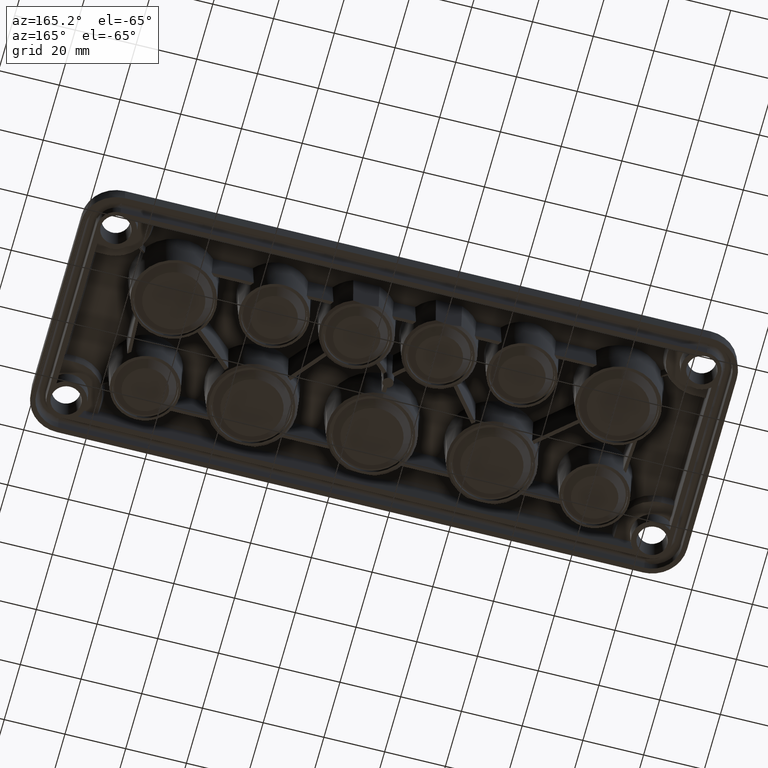
[diagram: clean part render]
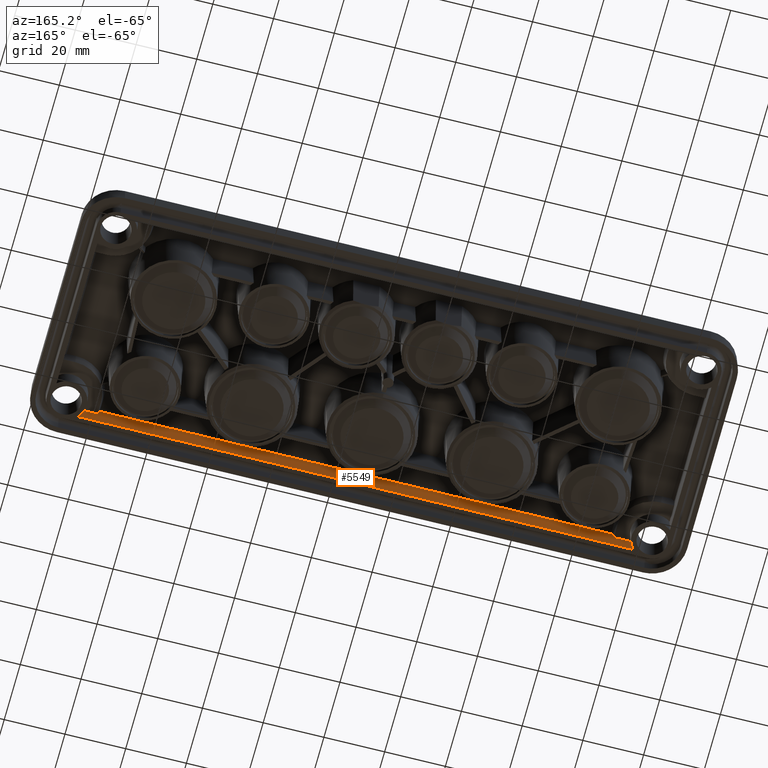
[diagram: same view with one face highlighted and labeled with its STEP entity id]
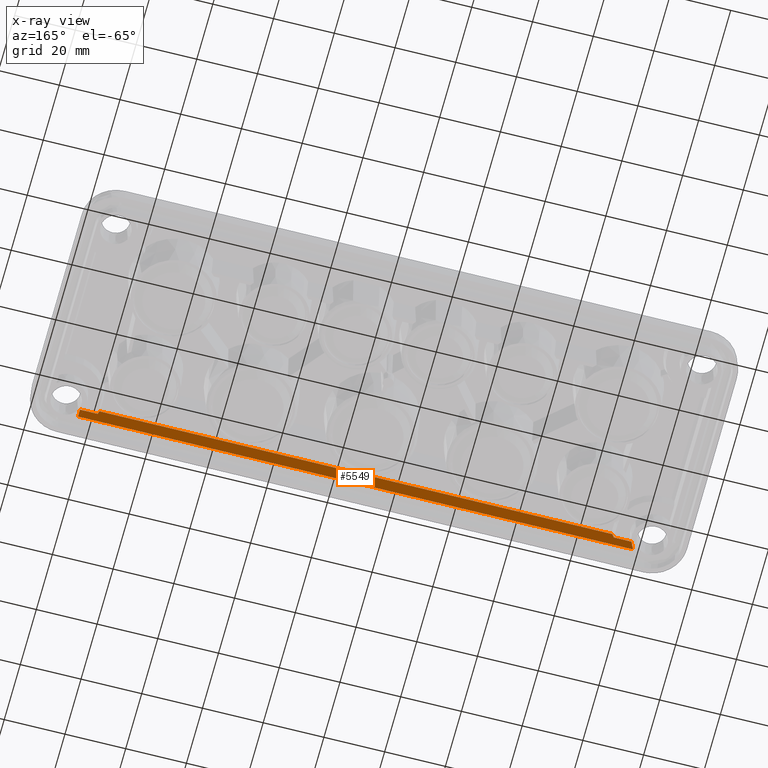
[diagram: x-ray of the same camera — body ghosted, the highlighted face saturated]
A machine part, auxiliary view. The second image highlights one B-rep face of the part: STEP entity #5549.
The next image is the same camera in x-ray: the body ghosted, the highlighted face saturated — about 0% of this face is hidden behind the body in this view.
In plain terms, the highlighted planar face has unit normal (-0, -0.9986, 0.0523).
Its self-contained STEP definition (entity closure, byte-faithful):
#269 = EDGE_CURVE ( 'NONE', #3693, #2060, #6876, .T. ) ;
#406 = CARTESIAN_POINT ( 'NONE',  ( 127.1969304835574000, 103.9051156834459800, 7.001370465245423200 ) ) ;
#504 = VECTOR ( 'NONE', #10700, 1000.000000000000000 ) ;
#1095 = VERTEX_POINT ( 'NONE', #17498 ) ;
#1238 = DIRECTION ( 'NONE',  ( -9.826648491202943600E-018, -0.9986295347545738300, 0.05233595624294659600 ) ) ;
#1552 = CARTESIAN_POINT ( 'NONE',  ( 120.2587037222531900, 103.5381894054234000, -3.072236916488853000E-014 ) ) ;
#1754 = ORIENTED_EDGE ( 'NONE', *, *, #8986, .T. ) ;
#1765 = LINE ( 'NONE', #2035, #10583 ) ;
#1857 = ORIENTED_EDGE ( 'NONE', *, *, #2562, .T. ) ;
#2035 = CARTESIAN_POINT ( 'NONE',  ( 211.6606648836394400, 103.5381894054246000, 8.881784197001252300E-016 ) ) ;
#2060 = VERTEX_POINT ( 'NONE', #406 ) ;
#2090 = DIRECTION ( 'NONE',  ( -1.000000000000000000, -0.0000000000000000000, 0.0000000000000000000 ) ) ;
#2562 = EDGE_CURVE ( 'NONE', #10891, #7012, #6418, .T. ) ;
#2574 = VERTEX_POINT ( 'NONE', #12463 ) ;
#2584 = CARTESIAN_POINT ( 'NONE',  ( 127.1969304835574000, 103.9051156834460000, 7.001370465245427600 ) ) ;
#2819 = ORIENTED_EDGE ( 'NONE', *, *, #269, .F. ) ;
#2858 = CARTESIAN_POINT ( 'NONE',  ( 120.8097426011956900, 103.8002283018393800, 4.999999999998188100 ) ) ;
#3215 = VECTOR ( 'NONE', #12124, 1000.000000000000000 ) ;
#3600 = LINE ( 'NONE', #11139, #15741 ) ;
#3693 = VERTEX_POINT ( 'NONE', #12796 ) ;
#3788 = VECTOR ( 'NONE', #9270, 1000.000000000000000 ) ;
#5333 = ORIENTED_EDGE ( 'NONE', *, *, #12053, .F. ) ;
#5514 = ORIENTED_EDGE ( 'NONE', *, *, #11259, .F. ) ;
#5549 = ADVANCED_FACE ( 'NONE', ( #14319 ), #9343, .F. ) ;
#5614 = DIRECTION ( 'NONE',  ( 0.0000000000000000000, -0.05233595624294658900, -0.9986295347545737200 ) ) ;
#5979 = CARTESIAN_POINT ( 'NONE',  ( 120.6260664470557200, 103.7084070776983000, 3.247946671320893300 ) ) ;
#6206 = B_SPLINE_CURVE_WITH_KNOTS ( 'NONE', 3,
 ( #13994, #7174, #11384, #10308 ),
 .UNSPECIFIED., .F., .F.,
 ( 4, 4 ),
 ( 0.0000000000000000000, 1.000000000000000000 ),
 .UNSPECIFIED. ) ;
#6418 = B_SPLINE_CURVE_WITH_KNOTS ( 'NONE', 3,
 ( #16674, #11094, #5979, #2858 ),
 .UNSPECIFIED., .F., .F.,
 ( 4, 4 ),
 ( 0.0000000000000000000, 1.000000000000000000 ),
 .UNSPECIFIED. ) ;
#6572 = CARTESIAN_POINT ( 'NONE',  ( 296.6606648836394700, 103.8002283018398200, 5.000000000000000900 ) ) ;
#6876 = LINE ( 'NONE', #9479, #3215 ) ;
#6946 = CARTESIAN_POINT ( 'NONE',  ( 120.8097426011956900, 103.8002283018393800, 4.999999999998188100 ) ) ;
#7012 = VERTEX_POINT ( 'NONE', #6946 ) ;
#7174 = CARTESIAN_POINT ( 'NONE',  ( 302.8787083754639300, 103.6211630123450600, 1.583280302101334900 ) ) ;
#7442 = EDGE_CURVE ( 'NONE', #2574, #16645, #10186, .T. ) ;
#7741 = LINE ( 'NONE', #2584, #8370 ) ;
#8143 = VERTEX_POINT ( 'NONE', #16122 ) ;
#8370 = VECTOR ( 'NONE', #9488, 1000.000000000000100 ) ;
#8986 = EDGE_CURVE ( 'NONE', #8143, #10891, #1765, .T. ) ;
#9270 = DIRECTION ( 'NONE',  ( -1.000000000000000000, 9.813181410966728600E-018, -5.142870454504143400E-019 ) ) ;
#9343 = PLANE ( 'NONE',  #15882 ) ;
#9479 = CARTESIAN_POINT ( 'NONE',  ( 303.0626260450271200, 103.9051156834460000, 7.001370465245430300 ) ) ;
#9488 = DIRECTION ( 'NONE',  ( -0.2584880576001510300, -0.05055729016049344300, -0.9646905641135548000 ) ) ;
#10186 = LINE ( 'NONE', #14917, #504 ) ;
#10308 = CARTESIAN_POINT ( 'NONE',  ( 302.5115871660839300, 103.8002283018398700, 4.999999999999092300 ) ) ;
#10583 = VECTOR ( 'NONE', #2090, 1000.000000000000000 ) ;
#10700 = DIRECTION ( 'NONE',  ( -1.000000000000000000, 9.813181410966728600E-018, -5.142870454504143400E-019 ) ) ;
#10891 = VERTEX_POINT ( 'NONE', #1552 ) ;
#11025 = DIRECTION ( 'NONE',  ( -0.2584880576001134500, 0.05055729016049394900, 0.9646905641135648000 ) ) ;
#11094 = CARTESIAN_POINT ( 'NONE',  ( 120.4423868207412800, 103.6210607788932100, 1.581280004654225700 ) ) ;
#11139 = CARTESIAN_POINT ( 'NONE',  ( 296.6606648836394700, 103.8002283018398200, 5.000000000000002700 ) ) ;
#11189 = EDGE_LOOP ( 'NONE', ( #5333, #14072, #12221, #1754, #1857, #17657, #5514, #2819 ) ) ;
#11259 = EDGE_CURVE ( 'NONE', #2060, #1095, #7741, .T. ) ;
#11384 = CARTESIAN_POINT ( 'NONE',  ( 302.6950515135703200, 103.7085097576880500, 3.249946968768044500 ) ) ;
#11967 = EDGE_CURVE ( 'NONE', #1095, #7012, #15400, .T. ) ;
#12053 = EDGE_CURVE ( 'NONE', #16645, #3693, #3600, .T. ) ;
#12124 = DIRECTION ( 'NONE',  ( -1.000000000000000000, 9.813181410966728600E-018, -5.142870454504143400E-019 ) ) ;
#12221 = ORIENTED_EDGE ( 'NONE', *, *, #17683, .F. ) ;
#12463 = CARTESIAN_POINT ( 'NONE',  ( 302.5115871660839300, 103.8002283018398700, 4.999999999999092300 ) ) ;
#12796 = CARTESIAN_POINT ( 'NONE',  ( 296.1243992837215200, 103.9051156834460100, 7.001370465245422300 ) ) ;
#13866 = CARTESIAN_POINT ( 'NONE',  ( 303.0626260450271200, 103.5381894054246000, 0.0000000000000000000 ) ) ;
#13994 = CARTESIAN_POINT ( 'NONE',  ( 303.0626260450264300, 103.5381894054239800, -2.499978571154328000E-014 ) ) ;
#14072 = ORIENTED_EDGE ( 'NONE', *, *, #7442, .F. ) ;
#14319 = FACE_OUTER_BOUND ( 'NONE', #11189, .T. ) ;
#14917 = CARTESIAN_POINT ( 'NONE',  ( 303.0626260450271200, 103.8002283018398200, 5.000000000000001800 ) ) ;
#15400 = LINE ( 'NONE', #17512, #3788 ) ;
#15741 = VECTOR ( 'NONE', #11025, 1000.000000000000100 ) ;
#15882 = AXIS2_PLACEMENT_3D ( 'NONE', #13866, #1238, #5614 ) ;
#16122 = CARTESIAN_POINT ( 'NONE',  ( 303.0626260450264300, 103.5381894054239800, -2.499978571154328000E-014 ) ) ;
#16645 = VERTEX_POINT ( 'NONE', #6572 ) ;
#16674 = CARTESIAN_POINT ( 'NONE',  ( 120.2587037222531900, 103.5381894054234000, -3.072236916488853000E-014 ) ) ;
#17498 = CARTESIAN_POINT ( 'NONE',  ( 126.6606648836393800, 103.8002283018398200, 4.999999999999997300 ) ) ;
#17512 = CARTESIAN_POINT ( 'NONE',  ( 303.0626260450271200, 103.8002283018398200, 5.000000000000000900 ) ) ;
#17657 = ORIENTED_EDGE ( 'NONE', *, *, #11967, .F. ) ;
#17683 = EDGE_CURVE ( 'NONE', #8143, #2574, #6206, .T. ) ;